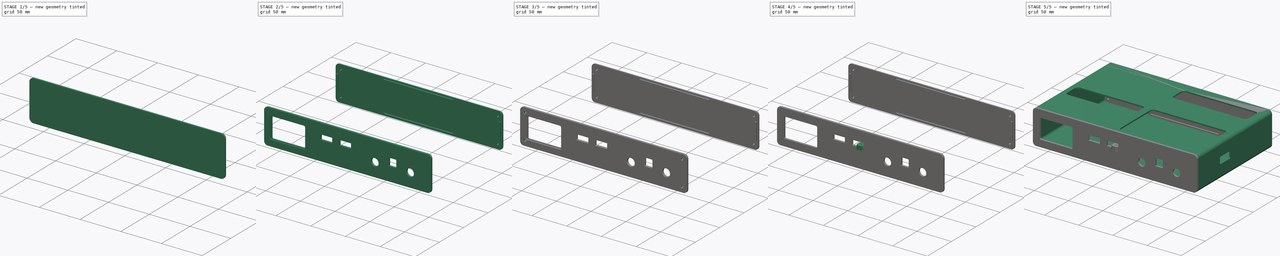
[diagram: build sequence overview — one tinted view per stage of 5, left to right]
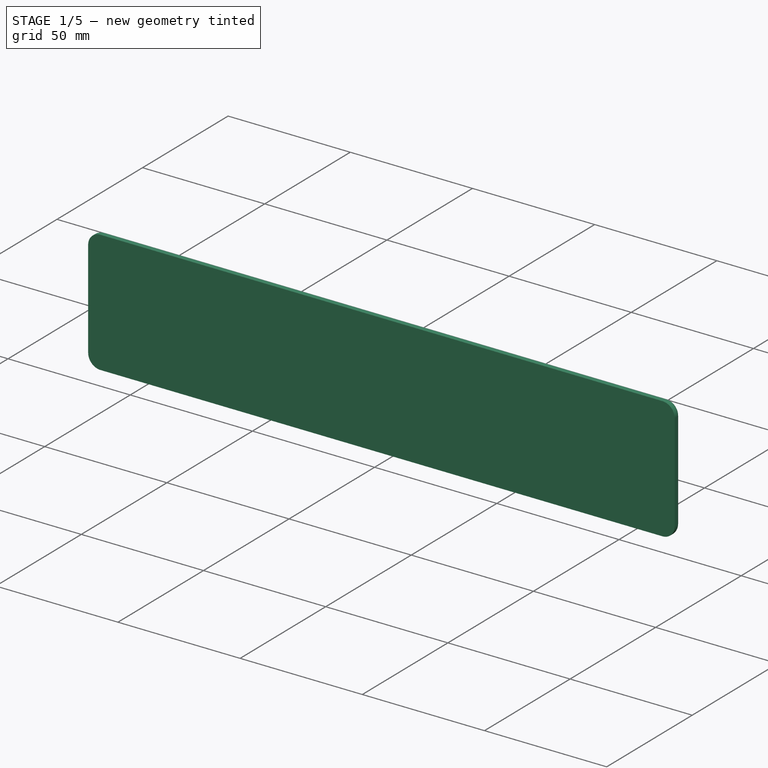
[diagram: stage 1 of 5 — iso view after this stage's code; geometry added in this stage tinted green]
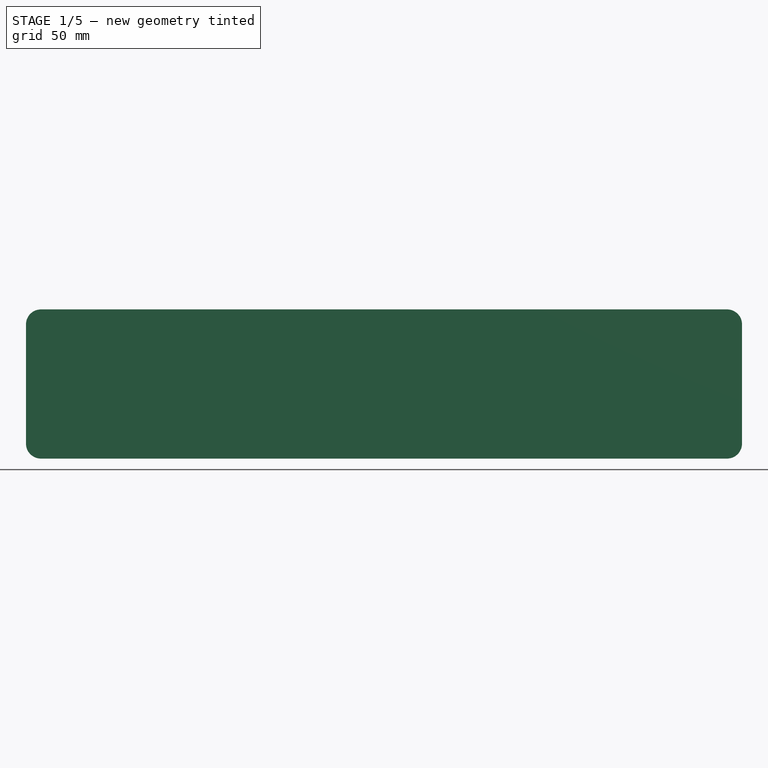
[diagram: stage 1 of 5 — front view after this stage's code; geometry added in this stage tinted green]
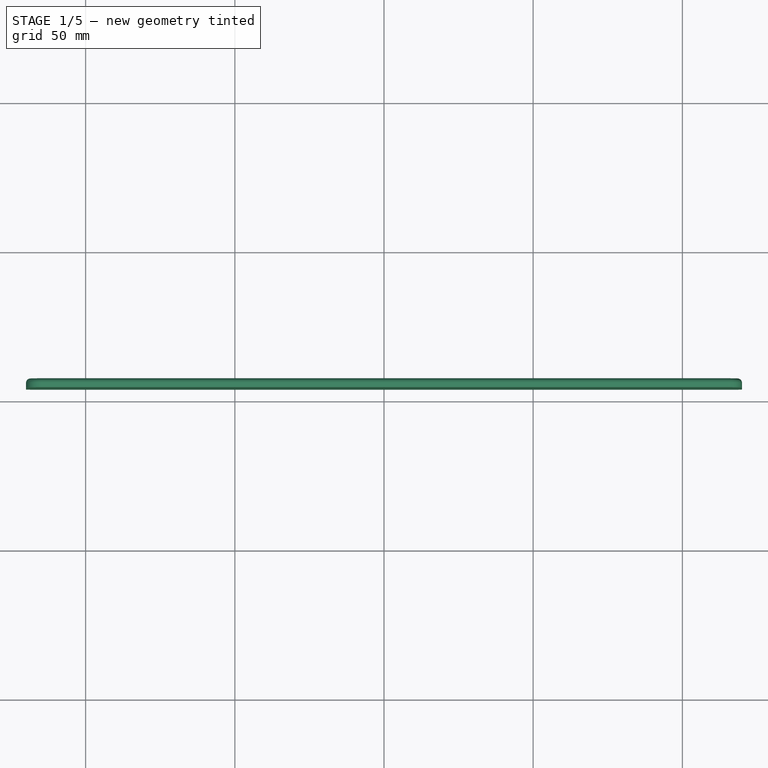
[diagram: stage 1 of 5 — top view after this stage's code; geometry added in this stage tinted green]
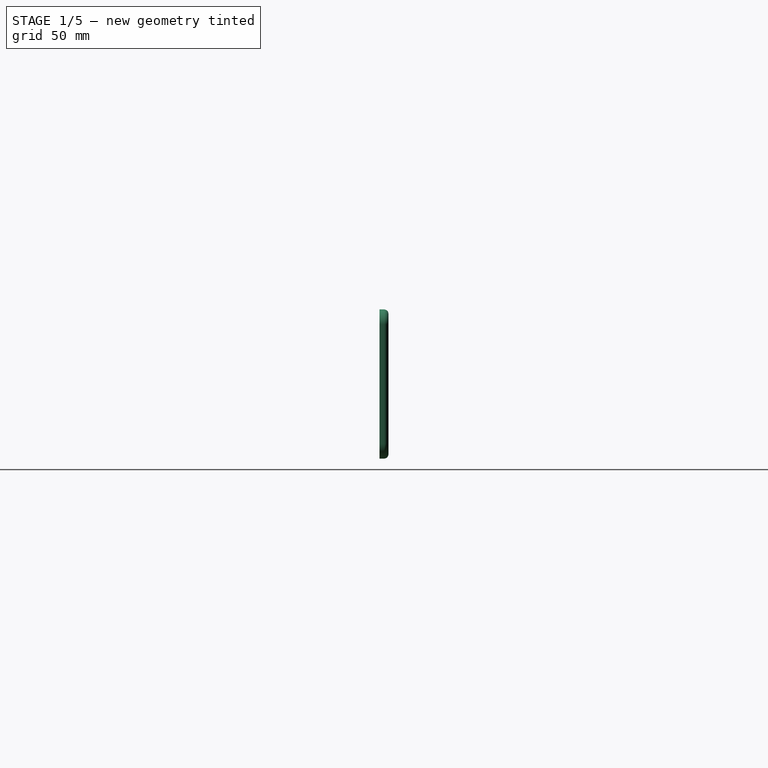
[diagram: stage 1 of 5 — right view after this stage's code; geometry added in this stage tinted green]
FCSTD DOCUMENT  (FreeCAD 1.1R14555 (Git shallow))
Label: housing v0.1
License: All rights reserved
LicenseURL: http://en.wikipedia.org/wiki/All_rights_reserved
objects: Sketcher::SketchObject×12, PartDesign::Pad×6, PartDesign::Pocket×5, App::Point×4, PartDesign::Body×4, PartDesign::Fillet×3, Spreadsheet::Sheet×1, PartDesign::Hole×1
note: 73 computed .brp shape members not serialized (recipe doc carries the construction recipe); baked Part::Feature solids carry a one-line shape summary decoded from their .brp

FEATURE [Spreadsheet::Sheet] Spreadsheet  label="dimensions"
  cells = A1='ext_width; B1(ext_width)=240; A2='ext_height; B2(ext_height)=50; A3='ext_depth; B3(ext_depth)=160; A4='wall_thickness; B4(wall_wthickness)=2; A5='panel_thickness; B5(panel_thickness)=3; A6='ext_radius; B6(ext_radius)=5
FEATURE [Sketcher::SketchObject] Sketch
  ArcFitTolerance = 1e-06
  AttachmentOffset = pos=(0,0,-154) rot=(0,0,1;0rad)
  AttachmentSupport = -> [XZ_Plane]
  ExternalTypes = [0]
  FullyConstrained = true
  MakeInternals = false
  MapMode = 5
  Placement = pos=(0,154,-3.42e-14) rot=(1,0,0;1.5708rad)
  expr: .AttachmentOffset.Base.z = -<<dimensions>>.ext_depth + <<dimensions>>.panel_thickness * 2
  expr: Constraints[17] = <<dimensions>>.ext_radius
  expr: Constraints[18] = <<dimensions>>.ext_width
  expr: Constraints[20] = <<dimensions>>.ext_height
  sketch-geometry (10):
    g0: LineSegment StartX=-120 StartY=20 StartZ=0 EndX=-120 EndY=-20 EndZ=0
    g1: LineSegment StartX=-115 StartY=-25 StartZ=0 EndX=115 EndY=-25 EndZ=0
    g2: LineSegment StartX=120 StartY=-20 StartZ=0 EndX=120 EndY=20 EndZ=0
    g3: LineSegment StartX=115 StartY=25 StartZ=0 EndX=-115 EndY=25 EndZ=0
    g4: ArcOfCircle CenterX=-115 CenterY=20 CenterZ=0 NormalX=0 NormalY=0 NormalZ=1 AngleXU=0 Radius=5 StartAngle=1.5708 EndAngle=3.14159
    g5: ArcOfCircle CenterX=-115 CenterY=-20 CenterZ=0 NormalX=0 NormalY=0 NormalZ=1 AngleXU=0 Radius=5 StartAngle=3.14159 EndAngle=4.71239
    g6: ArcOfCircle CenterX=115 CenterY=-20 CenterZ=0 NormalX=0 NormalY=0 NormalZ=1 AngleXU=0 Radius=5 StartAngle=4.71239 EndAngle=6.28319
    g7: ArcOfCircle CenterX=115 CenterY=20 CenterZ=0 NormalX=0 NormalY=0 NormalZ=1 AngleXU=0 Radius=5 StartAngle=0 EndAngle=1.5708
    g8: GeomPoint [constr] X=-120 Y=25 Z=0
    g9: GeomPoint [constr] X=120 Y=-25 Z=0
  constraints (22):
    c: Tangent(g0,g4) = -1.5708
    c: Tangent(g0,g5) = -1.5708
    c: Tangent(g1,g5) = -1.5708
    c: Tangent(g1,g6) = -1.5708
    c: Tangent(g2,g6) = -1.5708
    c: Tangent(g2,g7) = -1.5708
    c: Tangent(g3,g7) = -1.5708
    c: Tangent(g3,g4) = -1.5708
    c: Vertical(g0)
    c: Vertical(g2)
    c: Horizontal(g1)
    c: Horizontal(g3)
    c: Equal(g6,g7)
    c: PointOnObject(g8,g0)
    c: PointOnObject(g8,g3)
    c: PointOnObject(g9,g1)
    c: PointOnObject(g9,g2)
    c: Radius(g5) = 5
    c: Distance(g0,g2) = 240
    c: Symmetric(g0,g2,g-2)
    c: Distance(g1,g3) = 50
    c: Symmetric(g3,g1,g-1)
FEATURE [App::Point] Origin001
  Role = Origin
FEATURE [PartDesign::Pad] Pad
  Direction = (0,-1,2e-16)
  Length = 3
  Length2 = 10
  Placement = pos=(0,0,0) rot=(1,0,0;1.5708rad)
  Profile = -> Sketch
  ReferenceAxis = -> Sketch [N_Axis]
  Reversed = true
  SideType = 0
  Suppressed = false
  Type = 0
  Type2 = 0
  expr: Length = <<dimensions>>.panel_thickness
FEATURE [PartDesign::Body] Body001  label="shell"
  AllowCompound = false
  Group = -> [Sketch001,Pad001,Sketch003,Pocket,Sketch004,Pocket001]
  Origin = -> Origin002
  Tip = -> Pocket001
FEATURE [Sketcher::SketchObject] Sketch005
  ArcFitTolerance = 1e-06
  AttachmentOffset = pos=(0,-25,0) rot=(0,0,1;0rad)
  AttachmentSupport = -> [Pad002]
  ExternalTypes = [0]
  FullyConstrained = true
  MakeInternals = false
  MapMode = 5
  Placement = pos=(0,-3,-25) rot=(1,0,0;1.5708rad)
  expr: .AttachmentOffset.Base.y = -<<dimensions>>.ext_height / 2
  sketch-geometry (10):
    g0: LineSegment StartX=-111.5 StartY=38 StartZ=0 EndX=-111.5 EndY=11 EndZ=0
    g1: LineSegment StartX=-109.5 StartY=9 StartZ=0 EndX=-62.5 EndY=9 EndZ=0
    g2: LineSegment StartX=-60.5 StartY=11 StartZ=0 EndX=-60.5 EndY=38 EndZ=0
    g3: LineSegment StartX=-62.5 StartY=40 StartZ=0 EndX=-109.5 EndY=40 EndZ=0
    g4: ArcOfCircle CenterX=-109.5 CenterY=38 CenterZ=0 NormalX=0 NormalY=0 NormalZ=1 AngleXU=0 Radius=2 StartAngle=1.5708 EndAngle=3.14159
    g5: ArcOfCircle CenterX=-109.5 CenterY=11 CenterZ=0 NormalX=0 NormalY=0 NormalZ=1 AngleXU=0 Radius=2 StartAngle=3.14159 EndAngle=4.71239
    g6: ArcOfCircle CenterX=-62.5 CenterY=11 CenterZ=0 NormalX=0 NormalY=0 NormalZ=1 AngleXU=0 Radius=2 StartAngle=4.71239 EndAngle=6.28319
    g7: ArcOfCircle CenterX=-62.5 CenterY=38 CenterZ=0 NormalX=0 NormalY=0 NormalZ=1 AngleXU=0 Radius=2 StartAngle=-9e-16 EndAngle=1.5708
    g8: GeomPoint [constr] X=-111.5 Y=40 Z=0
    g9: GeomPoint [constr] X=-60.5 Y=9 Z=0
  constraints (24):
    c: Tangent(g0,g4) = -1.5708
    c: Tangent(g0,g5) = -1.5708
    c: Tangent(g1,g5) = -1.5708
    c: Tangent(g1,g6) = -1.5708
    c: Tangent(g2,g6) = -1.5708
    c: Tangent(g2,g7) = -1.5708
    c: Tangent(g3,g7) = -1.5708
    c: Tangent(g3,g4) = -1.5708
    c: Vertical(g0)
    c: Vertical(g2)
    c: Horizontal(g1)
    c: Horizontal(g3)
    c: Equal(g4,g5)
    c: Equal(g5,g6)
    c: Equal(g6,g7)
    c: PointOnObject(g8,g0)
    c: PointOnObject(g8,g3)
    c: PointOnObject(g9,g1)
    c: PointOnObject(g9,g2)
    c: Radius(g5) = 2
    c: Distance(g2,g0) = 51
    c: Distance(g1,g3) = 31
    c: Distance(g-2,g2) = 60.5
    c: Distance(g-1,g1) = 9
FEATURE [PartDesign::Fillet] Fillet002
  Base = -> Pad [Edge22]
  BaseFeature = -> Pad
  Placement = pos=(0,0,0) rot=(1,0,0;1.5708rad)
  Radius = 1.5
  SupportTransform = false
  Suppressed = false
  UseAllEdges = false
FEATURE [PartDesign::Body] Body002  label="rear panel"
  AllowCompound = false
  Group = -> [Sketch002,Pad002,Sketch005,Pocket002,Sketch009,Pad005,Sketch010,Pocket003,Fillet,Fillet003]
  Origin = -> Origin004
  Tip = -> Fillet003
FEATURE [PartDesign::Body] Body  label="front panel"
  AllowCompound = false
  Group = -> [Sketch,Pad,Fillet002,Sketch011,Pocket004,Sketch012,Pad006]
  Origin = -> Origin
  Tip = -> Pad006
FEATURE [Sketcher::SketchObject] Sketch011
  ArcFitTolerance = 1e-06
  AttachmentSupport = -> [Fillet002,Body]
  ExternalTypes = [0]
  FullyConstrained = true
  MakeInternals = false
  MapMode = 45
  Placement = pos=(1.448e-13,150.394,-3.33e-14) rot=(0.57735,0.57735,0.57735;4.18879rad)
  sketch-geometry (4):
    g0: Circle CenterX=-113 CenterY=18 CenterZ=0 NormalX=0 NormalY=0 NormalZ=1 AngleXU=0 Radius=1.5
    g1: Circle CenterX=113 CenterY=18 CenterZ=0 NormalX=0 NormalY=0 NormalZ=1 AngleXU=0 Radius=1.5
    g2: Circle CenterX=113 CenterY=-18 CenterZ=0 NormalX=0 NormalY=0 NormalZ=1 AngleXU=0 Radius=1.5
    g3: Circle CenterX=-113 CenterY=-18 CenterZ=0 NormalX=0 NormalY=0 NormalZ=1 AngleXU=0 Radius=1.5
  constraints (9):
    c: Equal(g0,g1)
    c: Equal(g0,g2)
    c: Equal(g0,g3)
    c: Diameter(g0) = 3
    c: DistanceX(g-1,g1) = 113
    c: DistanceY(g-1,g1) = 18
    c: Symmetric(g1,g2,g-1)
    c: Symmetric(g1,g0,g-2)
    c: Symmetric(g0,g3,g-1)
FEATURE [PartDesign::Pocket] Pocket004
  BaseFeature = -> Fillet002
  Direction = (0,-1,-2e-16)
  Length = 5
  Length2 = 5
  Placement = pos=(0,0,0) rot=(1,0,0;1.5708rad)
  Profile = -> Sketch011
  ReferenceAxis = -> Sketch011 [N_Axis]
  SideType = 0
  Suppressed = false
  Type = 0
  Type2 = 0
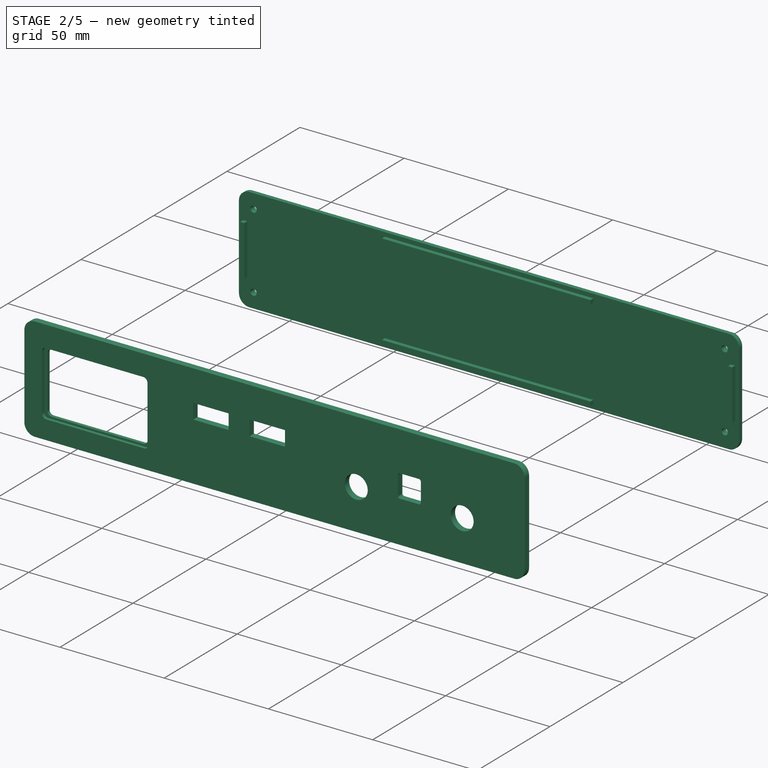
[diagram: stage 2 of 5 — iso view after this stage's code; geometry added in this stage tinted green]
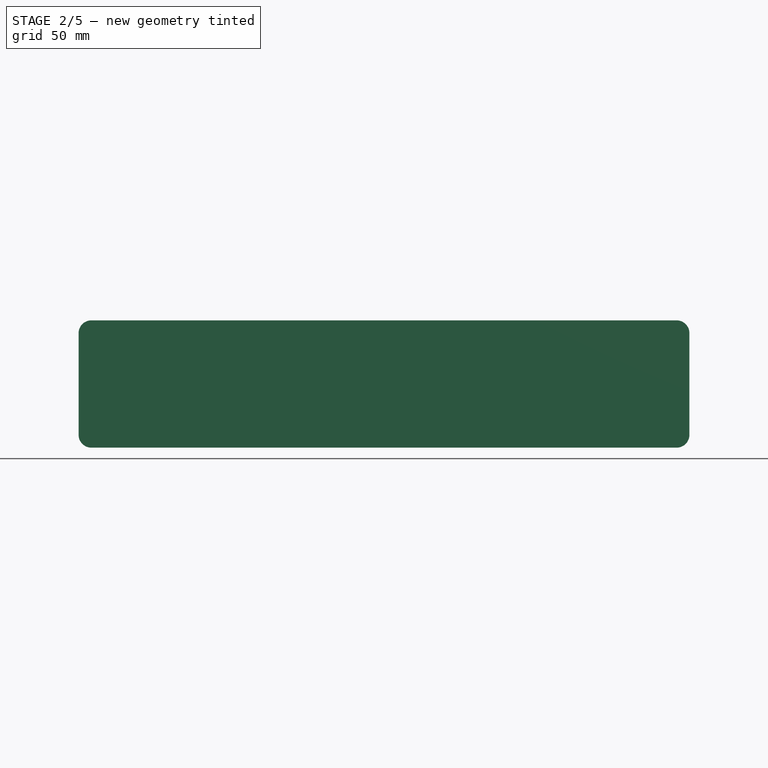
[diagram: stage 2 of 5 — front view after this stage's code; geometry added in this stage tinted green]
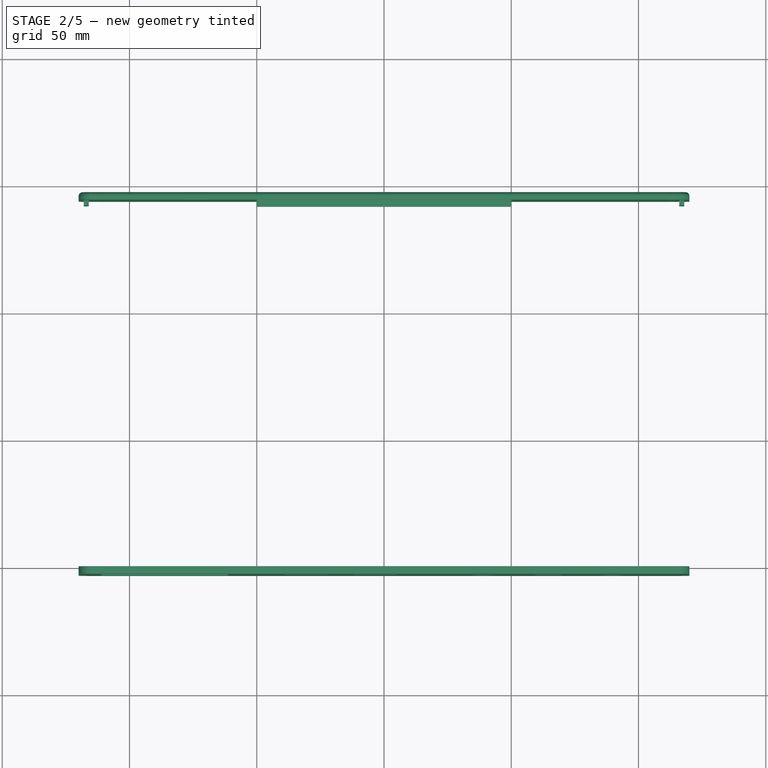
[diagram: stage 2 of 5 — top view after this stage's code; geometry added in this stage tinted green]
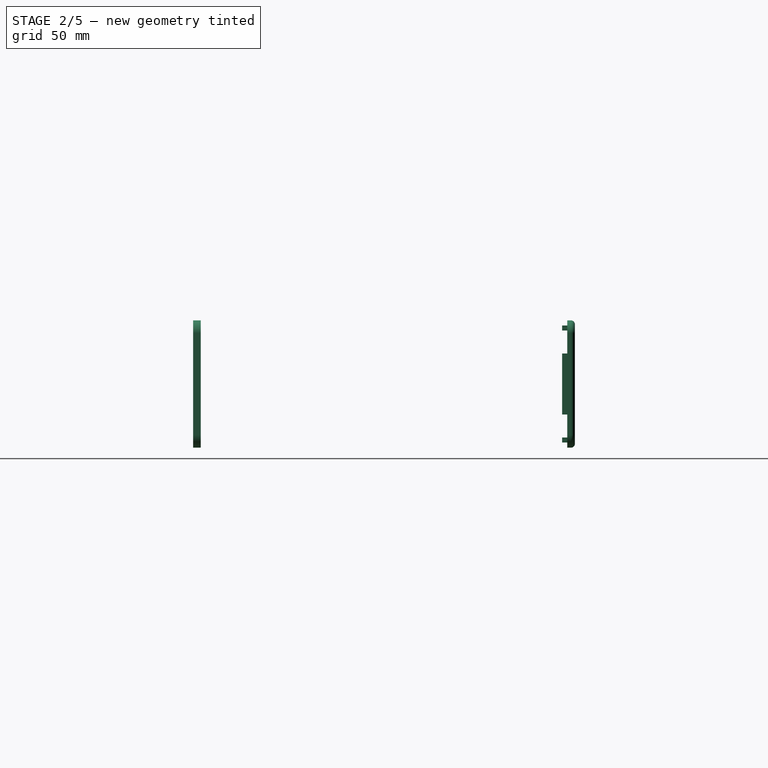
[diagram: stage 2 of 5 — right view after this stage's code; geometry added in this stage tinted green]
FEATURE [App::Point] Origin005
  Role = Origin
FEATURE [Sketcher::SketchObject] Sketch002
  ArcFitTolerance = 1e-06
  AttachmentOffset = pos=(0,-25,0) rot=(1,0,0;0rad)
  AttachmentSupport = -> [Origin004]
  ExternalTypes = [0]
  FullyConstrained = true
  MakeInternals = false
  MapMode = 5
  Placement = pos=(0,-5.6e-15,-25) rot=(1,0,0;1.5708rad)
  expr: .AttachmentOffset.Base.y = -<<dimensions>>.ext_height / 2
  expr: Constraints[21] = <<dimensions>>.ext_width
  expr: Constraints[25] = <<dimensions>>.wall_wthickness + 10 + 7.5
  sketch-geometry (40):
    g0: LineSegment StartX=-120 StartY=45 StartZ=0 EndX=-120 EndY=5 EndZ=0
    g1: LineSegment StartX=-115 StartY=0 StartZ=0 EndX=115 EndY=0 EndZ=0
    g2: LineSegment StartX=120 StartY=5 StartZ=0 EndX=120 EndY=45 EndZ=0
    g3: LineSegment StartX=115 StartY=50 StartZ=0 EndX=-115 EndY=50 EndZ=0
    g4: ArcOfCircle CenterX=-115 CenterY=45 CenterZ=0 NormalX=0 NormalY=0 NormalZ=1 AngleXU=0 Radius=5 StartAngle=1.5708 EndAngle=3.14159
    g5: ArcOfCircle CenterX=-115 CenterY=5 CenterZ=0 NormalX=0 NormalY=0 NormalZ=1 AngleXU=0 Radius=5 StartAngle=3.14159 EndAngle=4.71239
    g6: ArcOfCircle CenterX=115 CenterY=5 CenterZ=0 NormalX=0 NormalY=0 NormalZ=1 AngleXU=0 Radius=5 StartAngle=4.71239 EndAngle=6.28319
    g7: ArcOfCircle CenterX=115 CenterY=45 CenterZ=0 NormalX=0 NormalY=0 NormalZ=1 AngleXU=0 Radius=5 StartAngle=6e-16 EndAngle=1.5708
    g8: GeomPoint [constr] X=-120 Y=50 Z=0
    g9: GeomPoint [constr] X=120 Y=0 Z=0
    g10: Circle CenterX=90 CenterY=19.5 CenterZ=0 NormalX=0 NormalY=0 NormalZ=1 AngleXU=0 Radius=5.5
    g11: Circle CenterX=39.2 CenterY=19.5 CenterZ=0 NormalX=0 NormalY=0 NormalZ=1 AngleXU=0 Radius=5.5
    g12: LineSegment StartX=59.2 StartY=30 StartZ=0 EndX=59.2 EndY=21 EndZ=0
    g13: LineSegment StartX=60.2 StartY=20 StartZ=0 EndX=69.2 EndY=20 EndZ=0
    g14: LineSegment StartX=70.2 StartY=21 StartZ=0 EndX=70.2 EndY=30 EndZ=0
    g15: LineSegment StartX=69.2 StartY=31 StartZ=0 EndX=60.2 EndY=31 EndZ=0
    g16: ArcOfCircle CenterX=60.2 CenterY=30 CenterZ=0 NormalX=0 NormalY=0 NormalZ=1 AngleXU=0 Radius=1 StartAngle=1.5708 EndAngle=3.14159
    g17: ArcOfCircle CenterX=60.2 CenterY=21 CenterZ=0 NormalX=0 NormalY=0 NormalZ=1 AngleXU=0 Radius=1 StartAngle=3.14159 EndAngle=4.71239
    g18: ArcOfCircle CenterX=69.2 CenterY=21 CenterZ=0 NormalX=0 NormalY=0 NormalZ=1 AngleXU=0 Radius=1 StartAngle=4.71239 EndAngle=6.28319
    g19: ArcOfCircle CenterX=69.2 CenterY=30 CenterZ=0 NormalX=0 NormalY=0 NormalZ=1 AngleXU=0 Radius=1 StartAngle=-9e-16 EndAngle=1.5708
    g20: GeomPoint [constr] X=59.2 Y=31 Z=0
    g21: GeomPoint [constr] X=70.2 Y=20 Z=0
    g22: LineSegment StartX=-39 StartY=35 StartZ=0 EndX=-39 EndY=27.8 EndZ=0
    g23: LineSegment StartX=-39 StartY=27.8 StartZ=0 EndX=-22 EndY=27.8 EndZ=0
    g24: LineSegment StartX=-22 StartY=27.8 StartZ=0 EndX=-22 EndY=35 EndZ=0
    g25: LineSegment StartX=-22 StartY=35 StartZ=0 EndX=-39 EndY=35 EndZ=0
    g26: LineSegment StartX=-12 StartY=35 StartZ=0 EndX=-12 EndY=27.8 EndZ=0
    g27: LineSegment StartX=-12 StartY=27.8 StartZ=0 EndX=5 EndY=27.8 EndZ=0
    g28: LineSegment StartX=5 StartY=27.8 StartZ=0 EndX=5 EndY=35 EndZ=0
    g29: LineSegment StartX=5 StartY=35 StartZ=0 EndX=-12 EndY=35 EndZ=0
    g30: LineSegment StartX=-110 StartY=37 StartZ=0 EndX=-110 EndY=12 EndZ=0
    g31: LineSegment StartX=-108 StartY=10 StartZ=0 EndX=-64 EndY=10 EndZ=0
    g32: LineSegment StartX=-62 StartY=12 StartZ=0 EndX=-62 EndY=37 EndZ=0
    g33: LineSegment StartX=-64 StartY=39 StartZ=0 EndX=-108 EndY=39 EndZ=0
    g34: ArcOfCircle CenterX=-108 CenterY=37 CenterZ=0 NormalX=0 NormalY=0 NormalZ=1 AngleXU=0 Radius=2 StartAngle=1.5708 EndAngle=3.14159
    g35: ArcOfCircle CenterX=-108 CenterY=12 CenterZ=0 NormalX=0 NormalY=0 NormalZ=1 AngleXU=0 Radius=2 StartAngle=3.14159 EndAngle=4.71239
    g36: ArcOfCircle CenterX=-64 CenterY=12 CenterZ=0 NormalX=0 NormalY=0 NormalZ=1 AngleXU=0 Radius=2 StartAngle=4.71239 EndAngle=6.28319
    g37: ArcOfCircle CenterX=-64 CenterY=37 CenterZ=0 NormalX=0 NormalY=0 NormalZ=1 AngleXU=0 Radius=2 StartAngle=-9e-16 EndAngle=1.5708
    g38: GeomPoint [constr] X=-110 Y=39 Z=0
    g39: GeomPoint [constr] X=-62 Y=10 Z=0
  constraints (101):
    c: Tangent(g0,g4) = -1.5708
    c: Tangent(g0,g5) = -1.5708
    c: Tangent(g1,g5) = -1.5708
    c: Tangent(g1,g6) = -1.5708
    c: Tangent(g2,g6) = -1.5708
    c: Tangent(g2,g7) = -1.5708
    c: Tangent(g3,g7) = -1.5708
    c: Tangent(g3,g4) = -1.5708
    c: Vertical(g0)
    c: Vertical(g2)
    c: Horizontal(g1)
    c: Horizontal(g3)
    c: Equal(g4,g5)
    c: Equal(g6,g7)
    c: PointOnObject(g8,g0)
    c: PointOnObject(g8,g3)
    c: PointOnObject(g9,g1)
    c: PointOnObject(g9,g2)
    c: Radius(g5) = 5
    c: PointOnObject(g1,g-1)
    c: DistanceY(g-1,g3) = 50
    c: Distance(g0,g2) = 240
    c: Symmetric(g0,g2,g-2)
    c: Diameter(g10) = 11
    c: Distance(g10,g2) = 30
    c: Distance(g10,g-1) = 19.5
    c: Diameter(g11) = 11
    c: Distance(g11,g1) = 19.5
    c: DistanceX(g11,g10) = 50.8
    c: Tangent(g12,g16) = -1.5708
    c: Tangent(g12,g17) = -1.5708
    c: Tangent(g13,g17) = -1.5708
    c: Tangent(g13,g18) = -1.5708
    c: Tangent(g14,g18) = -1.5708
    c: Tangent(g14,g19) = -1.5708
    c: Tangent(g15,g19) = -1.5708
    c: Tangent(g15,g16) = -1.5708
    c: Vertical(g12)
    c: Vertical(g14)
    c: Horizontal(g13)
    c: Horizontal(g15)
    c: Equal(g16,g17)
    c: Equal(g17,g18)
    c: Equal(g18,g19)
    c: PointOnObject(g20,g12)
    c: PointOnObject(g20,g15)
    c: PointOnObject(g21,g13)
    c: PointOnObject(g21,g14)
    c: Radius(g17) = 1
    c: Distance(g14,g12) = 11
    c: Distance(g13,g15) = 11
    c: Distance(g1,g13) = 20
    c: Distance(g11,g12) = 20
    c: Coincident(g22,g23)
    c: Coincident(g23,g24)
    c: Coincident(g24,g25)
    c: Coincident(g25,g22)
    c: Vertical(g22)
    c: Vertical(g24)
    c: Horizontal(g23)
    c: Horizontal(g25)
    c: Coincident(g26,g27)
    c: Coincident(g27,g28)
    c: Coincident(g28,g29)
    c: Coincident(g29,g26)
    c: Vertical(g26)
    c: Vertical(g28)
    c: Horizontal(g27)
    c: Horizontal(g29)
    c: DistanceX(g25,g25) = 17
    c: DistanceY(g24,g24) = 7.2
    c: DistanceY(g28,g28) = 7.2
    c: DistanceX(g27,g27) = 17
    c: Distance(g26,g24) = 10
    c: Distance(g3,g25) = 15
    c: Distance(g3,g29) = 15
    c: Tangent(g30,g34) = -1.5708
    c: Tangent(g30,g35) = -1.5708
    c: Tangent(g31,g35) = -1.5708
    c: Tangent(g31,g36) = -1.5708
    c: Tangent(g32,g36) = -1.5708
    c: Tangent(g32,g37) = -1.5708
    c: Tangent(g33,g37) = -1.5708
    c: Tangent(g33,g34) = -1.5708
    c: Vertical(g30)
    c: Vertical(g32)
    c: Horizontal(g31)
    c: Horizontal(g33)
    c: Equal(g34,g35)
    c: Equal(g35,g36)
    c: Equal(g36,g37)
    c: PointOnObject(g38,g30)
    c: PointOnObject(g38,g33)
    c: PointOnObject(g39,g31)
    c: PointOnObject(g39,g32)
    c: Radius(g35) = 2
    c: Distance(g32,g30) = 48
    c: Distance(g31,g33) = 29
    c: Distance(g0,g30) = 10
    c: Distance(g1,g31) = 10
    c: Distance(g-2,g28) = 5
FEATURE [PartDesign::Pad] Pad002
  Direction = (0,-1,2e-16)
  Length = 3
  Length2 = 10
  Profile = -> Sketch002
  ReferenceAxis = -> Sketch002 [N_Axis]
  SideType = 0
  Suppressed = false
  Type = 0
  Type2 = 0
FEATURE [PartDesign::Body] Body003  label="m3 lug"
  AllowCompound = false
  Group = -> [Sketch006,Pad003,Sketch007,Hole]
  Origin = -> Origin006
  Tip = -> Hole
FEATURE [PartDesign::Pocket] Pocket002
  BaseFeature = -> Pad002
  Direction = (0,1,-2e-16)
  Length = 1.5
  Length2 = 5
  Profile = -> Sketch005
  ReferenceAxis = -> Sketch005 [N_Axis]
  SideType = 0
  Suppressed = false
  Type = 0
  Type2 = 0
FEATURE [Sketcher::SketchObject] Sketch012
  ArcFitTolerance = 1e-06
  AttachmentSupport = -> [Pocket004]
  ExternalTypes = [0]
  FullyConstrained = true
  MakeInternals = false
  MapMode = 5
  Placement = pos=(0,154,0) rot=(1,0,0;1.5708rad)
  sketch-geometry (16):
    g0: LineSegment StartX=-50 StartY=23 StartZ=0 EndX=-50 EndY=21 EndZ=0
    g1: LineSegment StartX=-50 StartY=21 StartZ=0 EndX=50 EndY=21 EndZ=0
    g2: LineSegment StartX=50 StartY=21 StartZ=0 EndX=50 EndY=23 EndZ=0
    g3: LineSegment StartX=50 StartY=23 StartZ=0 EndX=-50 EndY=23 EndZ=0
    g4: LineSegment StartX=-50 StartY=-21 StartZ=0 EndX=-50 EndY=-23 EndZ=0
    g5: LineSegment StartX=-50 StartY=-23 StartZ=0 EndX=50 EndY=-23 EndZ=0
    g6: LineSegment StartX=50 StartY=-23 StartZ=0 EndX=50 EndY=-21 EndZ=0
    g7: LineSegment StartX=50 StartY=-21 StartZ=0 EndX=-50 EndY=-21 EndZ=0
    g8: LineSegment StartX=116 StartY=12 StartZ=0 EndX=116 EndY=-12 EndZ=0
    g9: LineSegment StartX=116 StartY=-12 StartZ=0 EndX=118 EndY=-12 EndZ=0
    g10: LineSegment StartX=118 StartY=-12 StartZ=0 EndX=118 EndY=12 EndZ=0
    g11: LineSegment StartX=118 StartY=12 StartZ=0 EndX=116 EndY=12 EndZ=0
    g12: LineSegment StartX=-118 StartY=12 StartZ=0 EndX=-118 EndY=-12 EndZ=0
    g13: LineSegment StartX=-118 StartY=-12 StartZ=0 EndX=-116 EndY=-12 EndZ=0
    g14: LineSegment StartX=-116 StartY=-12 StartZ=0 EndX=-116 EndY=12 EndZ=0
    g15: LineSegment StartX=-116 StartY=12 StartZ=0 EndX=-118 EndY=12 EndZ=0
  constraints (42):
    c: Coincident(g0,g1)
    c: Coincident(g1,g2)
    c: Coincident(g2,g3)
    c: Coincident(g3,g0)
    c: Vertical(g0)
    c: Vertical(g2)
    c: Horizontal(g3)
    c: Coincident(g4,g5)
    c: Coincident(g5,g6)
    c: Coincident(g6,g7)
    c: Coincident(g7,g4)
    c: Vertical(g4)
    c: Vertical(g6)
    c: Horizontal(g5)
    c: Coincident(g8,g9)
    c: Coincident(g9,g10)
    c: Coincident(g10,g11)
    c: Coincident(g11,g8)
    c: Vertical(g10)
    c: Horizontal(g9)
    c: Horizontal(g11)
    c: Coincident(g12,g13)
    c: Coincident(g13,g14)
    c: Coincident(g14,g15)
    c: Coincident(g15,g12)
    c: Vertical(g14)
    c: Horizontal(g13)
    c: Horizontal(g15)
    c: DistanceX(g3,g3) = 100
    c: DistanceY(g2,g2) = 2
    c: DistanceY(g-1,g0) = 23
    c: Symmetric(g0,g1,g-2)
    c: Symmetric(g4,g6,g-2)
    c: Symmetric(g1,g6,g-1)
    c: DistanceY(g6,g6) = 2
    c: DistanceX(g-1,g9) = 118
    c: DistanceX(g11,g11) = 2
    c: DistanceY(g10,g10) = 24
    c: Symmetric(g8,g8,g-1)
    c: Distance(g15,g15) = 2
    c: Symmetric(g10,g12,g-2)
    c: Symmetric(g12,g9,g-2)
FEATURE [PartDesign::Pad] Pad006
  BaseFeature = -> Pocket004
  Direction = (0,-1,0)
  Length = 2
  Length2 = 10
  Placement = pos=(0,0,0) rot=(1,0,0;1.5708rad)
  Profile = -> Sketch012
  ReferenceAxis = -> Sketch012 [N_Axis]
  SideType = 0
  Suppressed = false
  Type = 0
  Type2 = 0
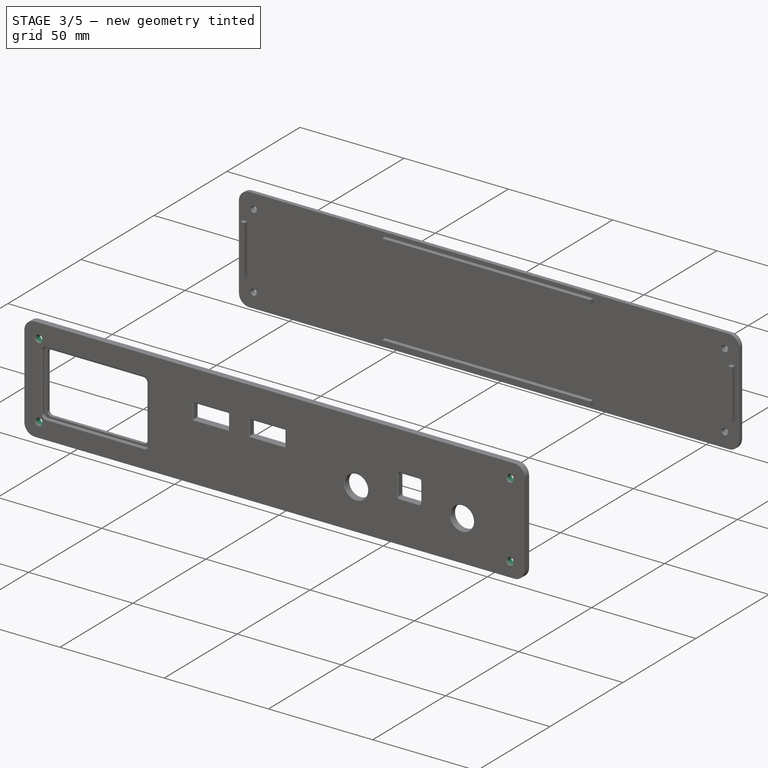
[diagram: stage 3 of 5 — iso view after this stage's code; geometry added in this stage tinted green]
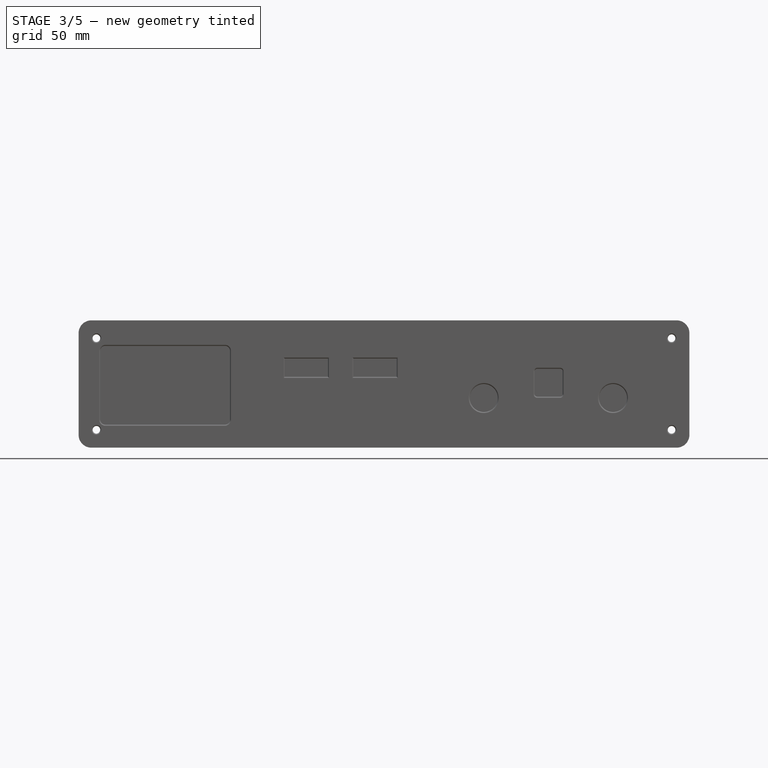
[diagram: stage 3 of 5 — front view after this stage's code; geometry added in this stage tinted green]
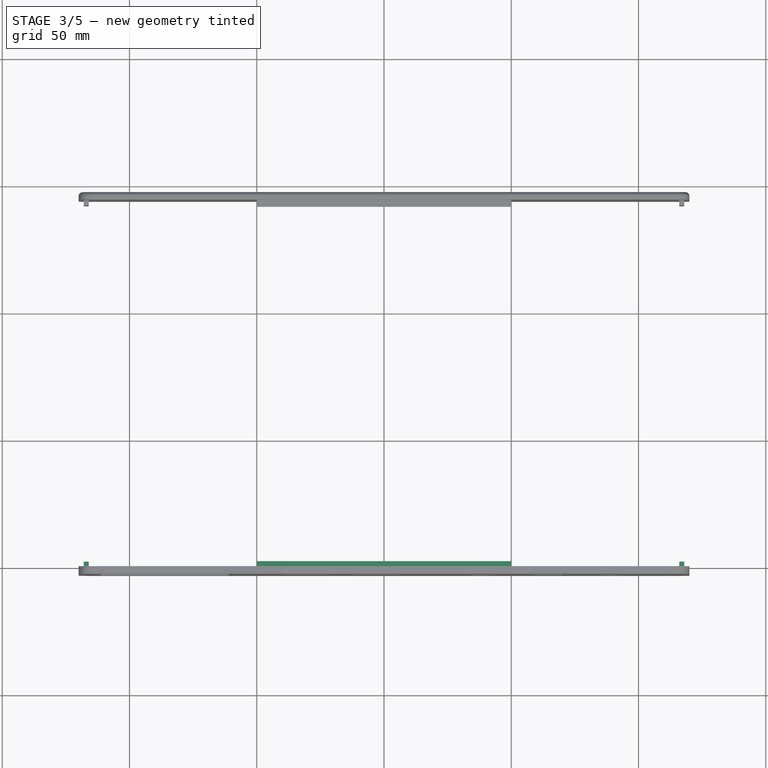
[diagram: stage 3 of 5 — top view after this stage's code; geometry added in this stage tinted green]
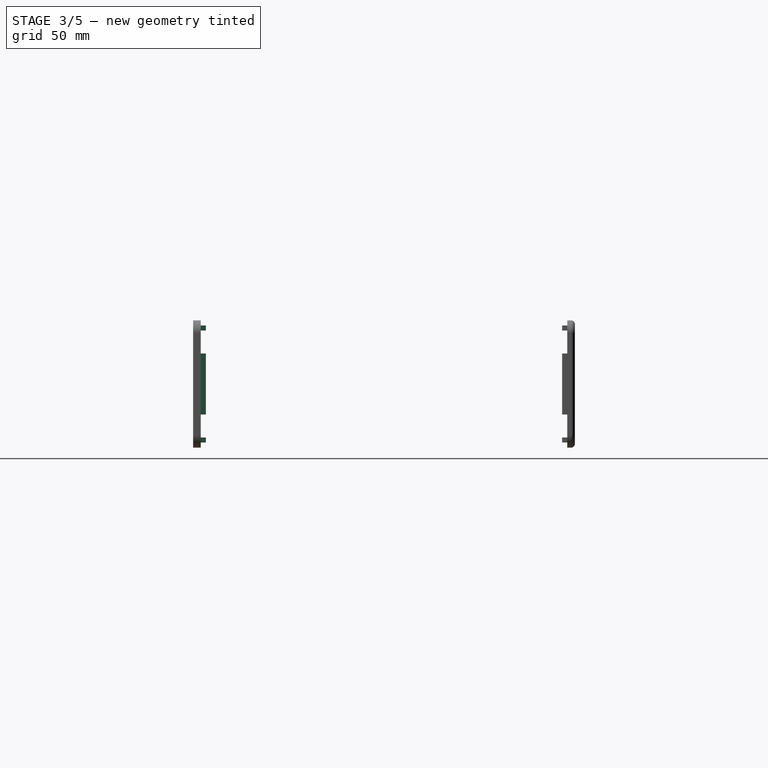
[diagram: stage 3 of 5 — right view after this stage's code; geometry added in this stage tinted green]
FEATURE [Sketcher::SketchObject] Sketch009
  ArcFitTolerance = 1e-06
  AttachmentSupport = -> [Pocket002]
  ExternalTypes = [0]
  FullyConstrained = true
  MakeInternals = false
  MapMode = 5
  Placement = pos=(0,1e-16,0) rot=(0,0.707107,0.707107;3.14159rad)
  expr: Constraints[30] = <<dimensions>>.ext_height / 2 - <<dimensions>>.wall_wthickness
  expr: Constraints[35] = <<dimensions>>.ext_width / 2 - <<dimensions>>.wall_wthickness
  expr: Constraints[37] = <<dimensions>>.ext_height - <<dimensions>>.wall_wthickness * 2 - 20 - 2
  sketch-geometry (16):
    g0: LineSegment StartX=-50 StartY=23 StartZ=0 EndX=-50 EndY=21 EndZ=0
    g1: LineSegment StartX=-50 StartY=21 StartZ=0 EndX=50 EndY=21 EndZ=0
    g2: LineSegment StartX=50 StartY=21 StartZ=0 EndX=50 EndY=23 EndZ=0
    g3: LineSegment StartX=50 StartY=23 StartZ=0 EndX=-50 EndY=23 EndZ=0
    g4: LineSegment StartX=-50 StartY=-21 StartZ=0 EndX=-50 EndY=-23 EndZ=0
    g5: LineSegment StartX=-50 StartY=-23 StartZ=0 EndX=50 EndY=-23 EndZ=0
    g6: LineSegment StartX=50 StartY=-23 StartZ=0 EndX=50 EndY=-21 EndZ=0
    g7: LineSegment StartX=50 StartY=-21 StartZ=0 EndX=-50 EndY=-21 EndZ=0
    g8: LineSegment StartX=116 StartY=12 StartZ=0 EndX=116 EndY=-12 EndZ=0
    g9: LineSegment StartX=116 StartY=-12 StartZ=0 EndX=118 EndY=-12 EndZ=0
    g10: LineSegment StartX=118 StartY=-12 StartZ=0 EndX=118 EndY=12 EndZ=0
    g11: LineSegment StartX=118 StartY=12 StartZ=0 EndX=116 EndY=12 EndZ=0
    g12: LineSegment StartX=-118 StartY=12 StartZ=0 EndX=-118 EndY=-12 EndZ=0
    g13: LineSegment StartX=-118 StartY=-12 StartZ=0 EndX=-116 EndY=-12 EndZ=0
    g14: LineSegment StartX=-116 StartY=-12 StartZ=0 EndX=-116 EndY=12 EndZ=0
    g15: LineSegment StartX=-116 StartY=12 StartZ=0 EndX=-118 EndY=12 EndZ=0
  constraints (42):
    c: Coincident(g0,g1)
    c: Coincident(g1,g2)
    c: Coincident(g2,g3)
    c: Coincident(g3,g0)
    c: Vertical(g0)
    c: Vertical(g2)
    c: Horizontal(g3)
    c: Coincident(g4,g5)
    c: Coincident(g5,g6)
    c: Coincident(g6,g7)
    c: Coincident(g7,g4)
    c: Vertical(g4)
    c: Vertical(g6)
    c: Horizontal(g5)
    c: Coincident(g8,g9)
    c: Coincident(g9,g10)
    c: Coincident(g10,g11)
    c: Coincident(g11,g8)
    c: Vertical(g10)
    c: Horizontal(g9)
    c: Horizontal(g11)
    c: Coincident(g12,g13)
    c: Coincident(g13,g14)
    c: Coincident(g14,g15)
    c: Coincident(g15,g12)
    c: Vertical(g14)
    c: Horizontal(g13)
    c: Horizontal(g15)
    c: DistanceX(g3,g3) = 100
    c: DistanceY(g2,g2) = 2
    c: DistanceY(g-1,g0) = 23
    c: Symmetric(g0,g1,g-2)
    c: Symmetric(g4,g6,g-2)
    c: Symmetric(g1,g6,g-1)
    c: DistanceY(g6,g6) = 2
    c: DistanceX(g-1,g9) = 118
    c: DistanceX(g11,g11) = 2
    c: DistanceY(g10,g10) = 24
    c: Symmetric(g8,g8,g-1)
    c: Distance(g15,g15) = 2
    c: Symmetric(g10,g12,g-2)
    c: Symmetric(g12,g9,g-2)
FEATURE [PartDesign::Pad] Pad005
  BaseFeature = -> Pocket002
  Direction = (0,1,-2e-16)
  Length = 2
  Length2 = 10
  Profile = -> Sketch009
  ReferenceAxis = -> Sketch009 [N_Axis]
  SideType = 0
  Suppressed = false
  Type = 0
  Type2 = 0
FEATURE [Sketcher::SketchObject] Sketch010
  ArcFitTolerance = 1e-06
  ExternalTypes = [0]
  FullyConstrained = true
  MakeInternals = false
  MapMode = 5
  Placement = pos=(0,-3,0) rot=(1,0,0;1.5708rad)
  expr: Constraints[4] = <<dimensions>>.ext_width / 2 - <<dimensions>>.wall_wthickness - 5
  expr: Constraints[5] = <<dimensions>>.ext_height / 2 - <<dimensions>>.wall_wthickness - 5
  sketch-geometry (4):
    g0: Circle CenterX=-113 CenterY=18 CenterZ=0 NormalX=0 NormalY=0 NormalZ=1 AngleXU=0 Radius=1.5
    g1: Circle CenterX=113 CenterY=18 CenterZ=0 NormalX=0 NormalY=0 NormalZ=1 AngleXU=0 Radius=1.5
    g2: Circle CenterX=113 CenterY=-18 CenterZ=0 NormalX=0 NormalY=0 NormalZ=1 AngleXU=0 Radius=1.5
    g3: Circle CenterX=-113 CenterY=-18 CenterZ=0 NormalX=0 NormalY=0 NormalZ=1 AngleXU=0 Radius=1.5
  constraints (9):
    c: Equal(g0,g1)
    c: Equal(g0,g2)
    c: Equal(g0,g3)
    c: Diameter(g0) = 3
    c: DistanceX(g-1,g1) = 113
    c: DistanceY(g-1,g1) = 18
    c: Symmetric(g1,g2,g-1)
    c: Symmetric(g1,g0,g-2)
    c: Symmetric(g0,g3,g-1)
FEATURE [PartDesign::Pocket] Pocket003
  BaseFeature = -> Pad005
  Direction = (0,1,-2e-16)
  Length = 5
  Length2 = 5
  Profile = -> Sketch010
  ReferenceAxis = -> Sketch010 [N_Axis]
  SideType = 0
  Suppressed = false
  Type = 0
  Type2 = 0
FEATURE [PartDesign::Fillet] Fillet003
  Base = -> Pocket003 [Edge69,Edge76,Edge67,Edge79,Edge80,Edge78,Edge77,Edge81,Edge82,Edge84,Edge83,Edge85,Edge88,Edge87,Edge96,Edge86]
  BaseFeature = -> Pocket003
  Radius = 0.5
  SupportTransform = false
  Suppressed = false
  UseAllEdges = false
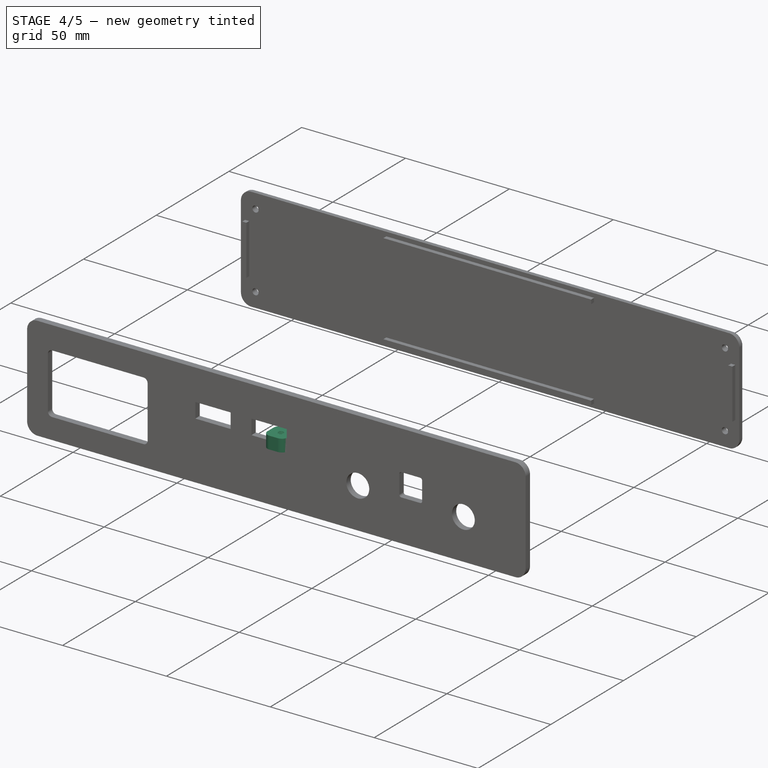
[diagram: stage 4 of 5 — iso view after this stage's code; geometry added in this stage tinted green]
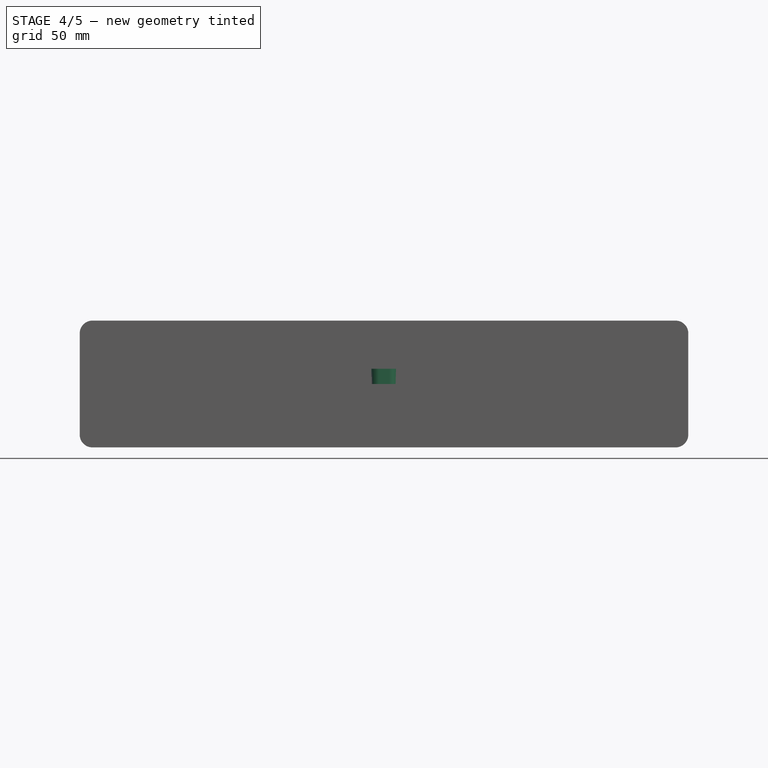
[diagram: stage 4 of 5 — front view after this stage's code; geometry added in this stage tinted green]
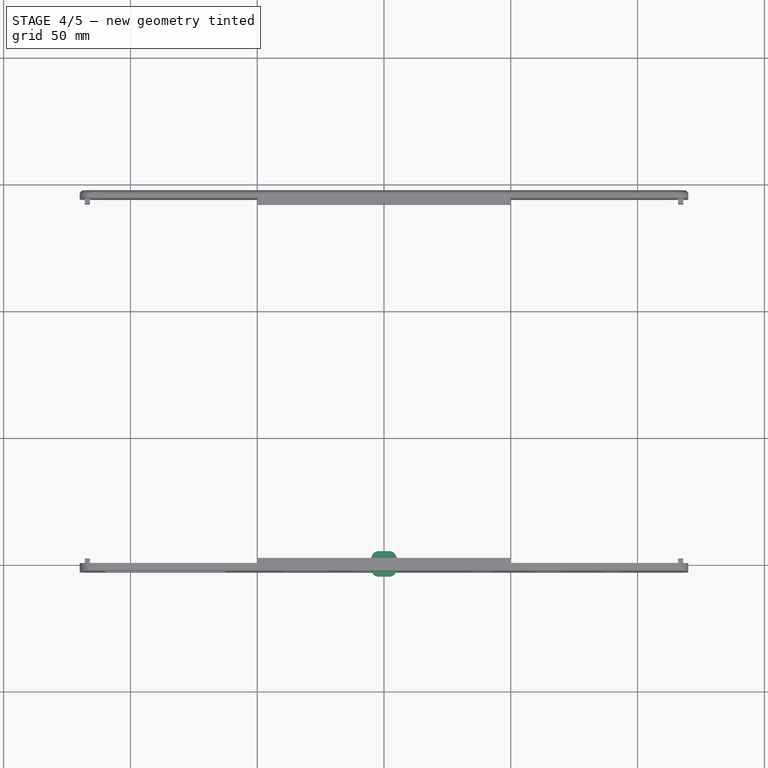
[diagram: stage 4 of 5 — top view after this stage's code; geometry added in this stage tinted green]
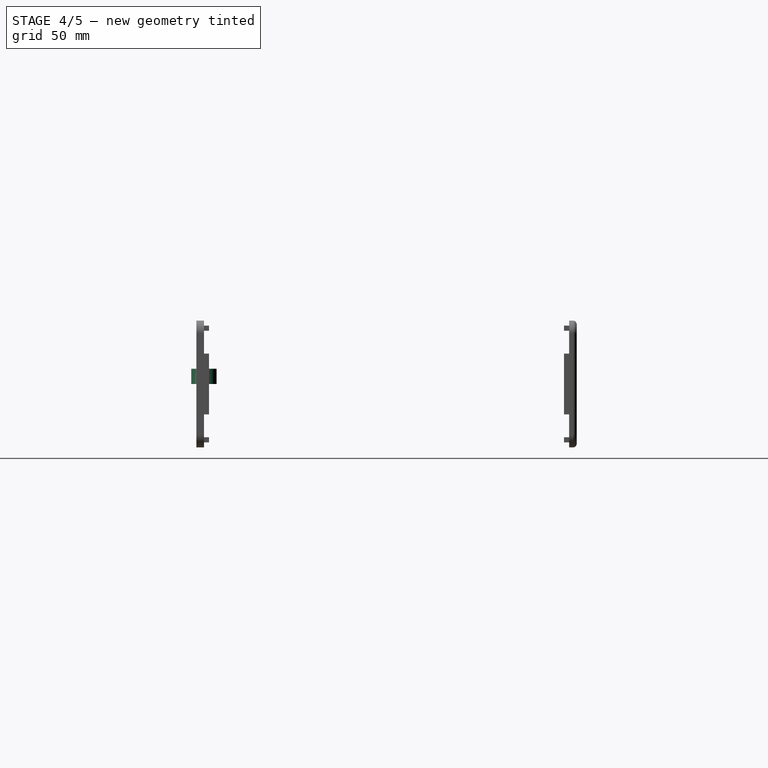
[diagram: stage 4 of 5 — right view after this stage's code; geometry added in this stage tinted green]
FEATURE [App::Point] Origin007
  Role = Origin
FEATURE [Sketcher::SketchObject] Sketch006
  ArcFitTolerance = 1e-06
  AttachmentSupport = -> [Origin006]
  ExternalTypes = [0]
  FullyConstrained = true
  MakeInternals = false
  MapMode = 5
  sketch-geometry (10):
    g0: LineSegment StartX=-5 StartY=2 StartZ=0 EndX=-5 EndY=-2 EndZ=0
    g1: LineSegment StartX=-2 StartY=-5 StartZ=0 EndX=2 EndY=-5 EndZ=0
    g2: LineSegment StartX=5 StartY=-2 StartZ=0 EndX=5 EndY=2 EndZ=0
    g3: LineSegment StartX=2 StartY=5 StartZ=0 EndX=-2 EndY=5 EndZ=0
    g4: ArcOfCircle CenterX=-2 CenterY=2 CenterZ=0 NormalX=0 NormalY=0 NormalZ=1 AngleXU=0 Radius=3 StartAngle=1.5708 EndAngle=3.14159
    g5: ArcOfCircle CenterX=-2 CenterY=-2 CenterZ=0 NormalX=0 NormalY=0 NormalZ=1 AngleXU=0 Radius=3 StartAngle=3.14159 EndAngle=4.71239
    g6: ArcOfCircle CenterX=2 CenterY=-2 CenterZ=0 NormalX=0 NormalY=0 NormalZ=1 AngleXU=0 Radius=3 StartAngle=4.71239 EndAngle=6.28319
    g7: ArcOfCircle CenterX=2 CenterY=2 CenterZ=0 NormalX=0 NormalY=0 NormalZ=1 AngleXU=0 Radius=3 StartAngle=1e-16 EndAngle=1.5708
    g8: GeomPoint [constr] X=-5 Y=5 Z=0
    g9: GeomPoint [constr] X=5 Y=-5 Z=0
  constraints (22):
    c: Tangent(g0,g4) = -1.5708
    c: Tangent(g0,g5) = -1.5708
    c: Tangent(g1,g5) = -1.5708
    c: Tangent(g1,g6) = -1.5708
    c: Tangent(g2,g6) = -1.5708
    c: Tangent(g2,g7) = -1.5708
    c: Tangent(g3,g7) = -1.5708
    c: Tangent(g3,g4) = -1.5708
    c: Vertical(g0)
    c: Vertical(g2)
    c: Horizontal(g1)
    c: Horizontal(g3)
    c: Equal(g5,g6)
    c: PointOnObject(g8,g0)
    c: PointOnObject(g8,g3)
    c: PointOnObject(g9,g1)
    c: PointOnObject(g9,g2)
    c: Radius(g5) = 3
    c: DistanceX(g0,g2) = 10
    c: Distance(g1,g3) = 10
    c: Symmetric(g3,g1,g-1)
    c: Symmetric(g2,g0,g-2)
FEATURE [PartDesign::Pad] Pad003
  Direction = (0,0,1)
  Length = 6
  Length2 = 10
  Profile = -> Sketch006
  ReferenceAxis = -> Sketch006 [N_Axis]
  SideType = 0
  Suppressed = false
  Type = 0
  Type2 = 0
FEATURE [Sketcher::SketchObject] Sketch007
  ArcFitTolerance = 1e-06
  AttachmentSupport = -> [Pad003]
  ExternalTypes = [0]
  FullyConstrained = true
  MakeInternals = false
  MapMode = 5
  Placement = pos=(0,0,0) rot=(1,0,0;3.14159rad)
  sketch-geometry (1):
    g0: Circle CenterX=0 CenterY=0 CenterZ=0 NormalX=0 NormalY=0 NormalZ=1 AngleXU=0 Radius=1.5
  constraints (2):
    c: Diameter(g0) = 3
    c: Coincident(g0,g-1)
FEATURE [PartDesign::Hole] Hole
  BaseFeature = -> Pad003
  BaseProfileType = 7
  CustomThreadClearance = 0
  Depth = 31.0318
  DepthType = 1
  Diameter = 2.52
  DrillForDepth = false
  DrillPoint = 1
  DrillPointAngle = 118
  HoleCutCountersinkAngle = 90
  HoleCutCustomValues = false
  HoleCutDepth = 0
  HoleCutDiameter = 0
  HoleCutType = 0
  ModelThread = true
  Profile = -> Sketch007
  Suppressed = false
  Tapered = false
  TaperedAngle = 90
  ThreadClass = 0
  ThreadDepth = 31.0318
  ThreadDepthType = 0
  ThreadDiameter = 3
  ThreadDirection = 0
  ThreadFit = 0
  ThreadSize = 9
  ThreadType = 1
  Threaded = true
  UseCustomThreadClearance = false
FEATURE [PartDesign::Fillet] Fillet
  Base = -> Pad002 [Edge10]
  BaseFeature = -> Pad002
  Radius = 1.5
  SupportTransform = false
  Suppressed = false
  UseAllEdges = false
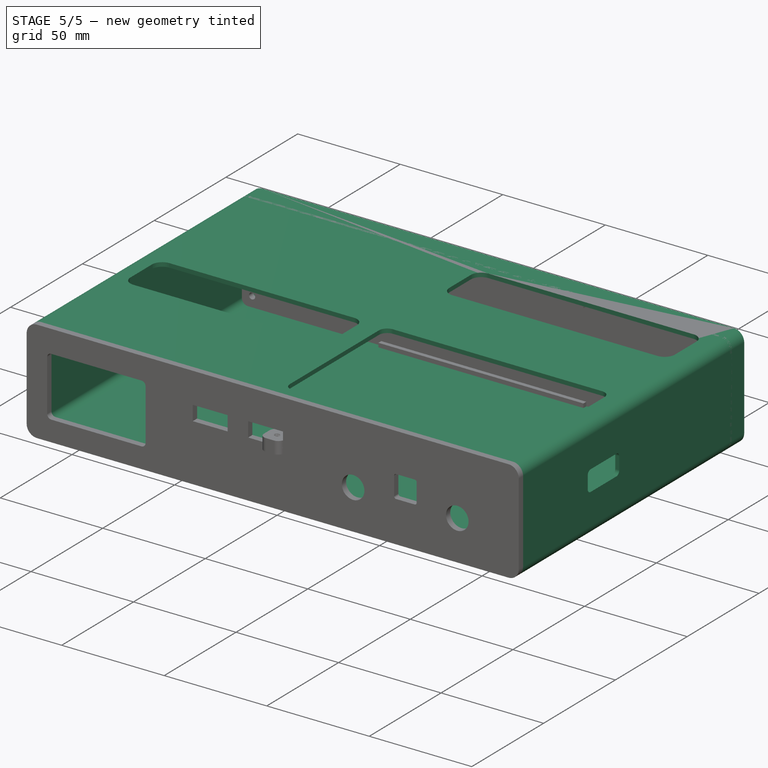
[diagram: stage 5 of 5 — iso view after this stage's code; geometry added in this stage tinted green]
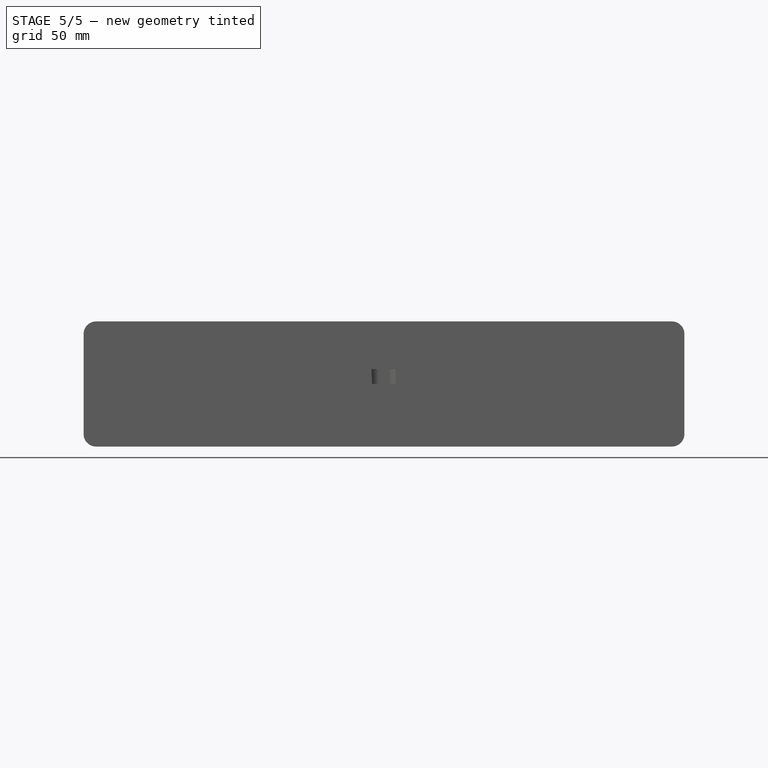
[diagram: stage 5 of 5 — front view after this stage's code; geometry added in this stage tinted green]
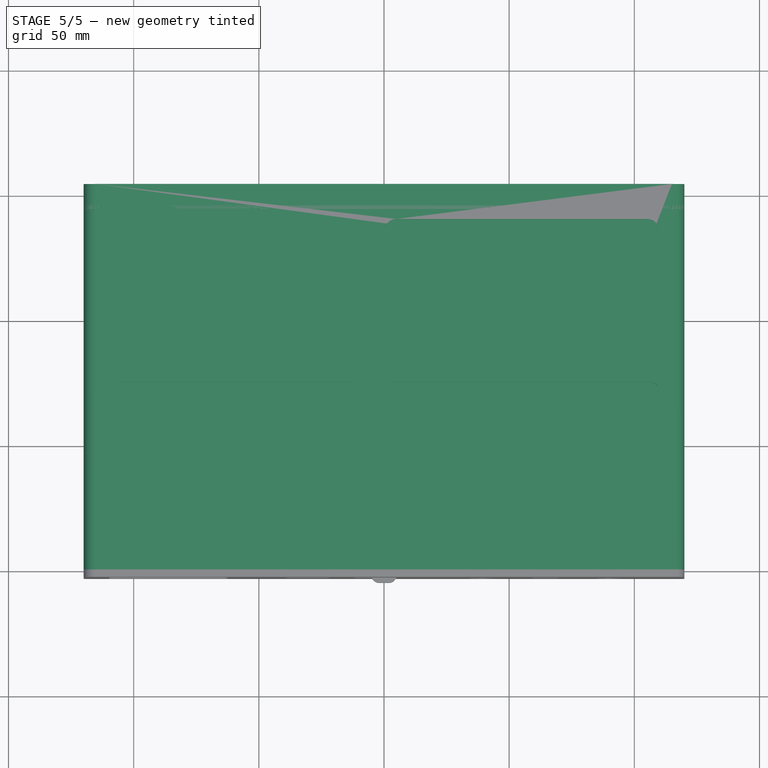
[diagram: stage 5 of 5 — top view after this stage's code; geometry added in this stage tinted green]
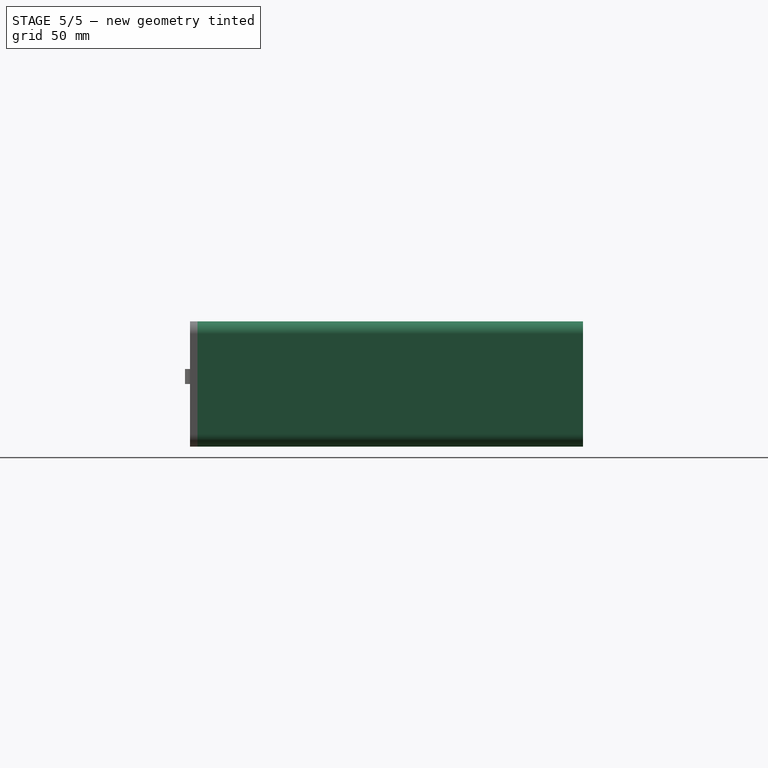
[diagram: stage 5 of 5 — right view after this stage's code; geometry added in this stage tinted green]
FEATURE [App::Point] Origin003
  Role = Origin
FEATURE [Sketcher::SketchObject] Sketch001
  ArcFitTolerance = 1e-06
  AttachmentSupport = -> [Origin002]
  ExternalTypes = [0]
  FullyConstrained = true
  MakeInternals = false
  MapMode = 5
  Placement = pos=(0,0,0) rot=(1,0,0;1.5708rad)
  expr: Constraints[35] = <<dimensions>>.ext_radius - <<dimensions>>.wall_wthickness
  expr: Constraints[36] = 3
  expr: Constraints[39] = <<dimensions>>.ext_height
  expr: Constraints[40] = <<dimensions>>.ext_height
  expr: Constraints[41] = <<dimensions>>.ext_height - <<dimensions>>.wall_wthickness * 2
  sketch-geometry (20):
    g0: LineSegment StartX=-120 StartY=20 StartZ=0 EndX=-120 EndY=-20 EndZ=0
    g1: LineSegment StartX=-115 StartY=-25 StartZ=0 EndX=115 EndY=-25 EndZ=0
    g2: LineSegment StartX=120 StartY=-20 StartZ=0 EndX=120 EndY=20 EndZ=0
    g3: LineSegment StartX=115 StartY=25 StartZ=0 EndX=-115 EndY=25 EndZ=0
    g4: ArcOfCircle CenterX=-115 CenterY=20 CenterZ=0 NormalX=0 NormalY=0 NormalZ=1 AngleXU=0 Radius=5 StartAngle=1.5708 EndAngle=3.14159
    g5: ArcOfCircle CenterX=-115 CenterY=-20 CenterZ=0 NormalX=0 NormalY=0 NormalZ=1 AngleXU=0 Radius=5 StartAngle=3.14159 EndAngle=4.71239
    g6: ArcOfCircle CenterX=115 CenterY=-20 CenterZ=0 NormalX=0 NormalY=0 NormalZ=1 AngleXU=0 Radius=5 StartAngle=4.71239 EndAngle=6.28319
    g7: ArcOfCircle CenterX=115 CenterY=20 CenterZ=0 NormalX=0 NormalY=0 NormalZ=1 AngleXU=0 Radius=5 StartAngle=1.6097e-12 EndAngle=1.5708
    g8: GeomPoint [constr] X=-120 Y=25 Z=0
    g9: GeomPoint [constr] X=120 Y=-25 Z=0
    g10: LineSegment StartX=-118 StartY=20 StartZ=0 EndX=-118 EndY=-20 EndZ=0
    g11: LineSegment StartX=-115 StartY=-23 StartZ=0 EndX=115 EndY=-23 EndZ=0
    g12: LineSegment StartX=118 StartY=-20 StartZ=0 EndX=118 EndY=20 EndZ=0
    g13: LineSegment StartX=115 StartY=23 StartZ=0 EndX=-115 EndY=23 EndZ=0
    g14: ArcOfCircle CenterX=-115 CenterY=20 CenterZ=0 NormalX=0 NormalY=0 NormalZ=1 AngleXU=0 Radius=3 StartAngle=1.5708 EndAngle=3.14159
    g15: ArcOfCircle CenterX=-115 CenterY=-20 CenterZ=0 NormalX=0 NormalY=0 NormalZ=1 AngleXU=0 Radius=3 StartAngle=3.14159 EndAngle=4.71239
    g16: ArcOfCircle CenterX=115 CenterY=-20 CenterZ=0 NormalX=0 NormalY=0 NormalZ=1 AngleXU=0 Radius=3 StartAngle=4.71239 EndAngle=6.28319
    g17: ArcOfCircle CenterX=115 CenterY=20 CenterZ=0 NormalX=0 NormalY=0 NormalZ=1 AngleXU=0 Radius=3 StartAngle=-9e-16 EndAngle=1.5708
    g18: GeomPoint [constr] X=-118 Y=23 Z=0
    g19: GeomPoint [constr] X=118 Y=-23 Z=0
  constraints (44):
    c: Tangent(g0,g4) = -1.5708
    c: Tangent(g0,g5) = -1.5708
    c: Tangent(g1,g5) = -1.5708
    c: Tangent(g1,g6) = -1.5708
    c: Tangent(g2,g6) = -1.5708
    c: Tangent(g2,g7) = -1.5708
    c: Tangent(g3,g7) = -1.5708
    c: Tangent(g3,g4) = -1.5708
    c: Vertical(g0)
    c: Vertical(g2)
    c: Horizontal(g1)
    c: Horizontal(g3)
    c: Equal(g6,g7)
    c: PointOnObject(g8,g0)
    c: PointOnObject(g8,g3)
    c: PointOnObject(g9,g1)
    c: PointOnObject(g9,g2)
    c: Radius(g5) = 5
    c: Symmetric(g0,g2,g-2)
    c: Tangent(g10,g14) = -1.5708
    c: Tangent(g10,g15) = -1.5708
    c: Tangent(g11,g15) = -1.5708
    c: Tangent(g11,g16) = -1.5708
    c: Tangent(g12,g16) = -1.5708
    c: Tangent(g12,g17) = -1.5708
    c: Tangent(g13,g17) = -1.5708
    c: Tangent(g13,g14) = -1.5708
    c: Vertical(g10)
    c: Vertical(g12)
    c: Horizontal(g11)
    c: Horizontal(g13)
    c: Equal(g15,g16)
    c: PointOnObject(g18,g10)
    c: PointOnObject(g18,g13)
    c: PointOnObject(g19,g11)
    c: PointOnObject(g19,g12) = 3
    c: Radius(g15) = 3
    c: Distance(g2,g0) = 240
    c: Symmetric(g13,g11,g-1)
    c: Symmetric(g3,g1,g-1) = 50
    c: Distance(g1,g3) = 50
    c: Distance(g11,g13) = 46
    c: Distance(g10,g12) = 236
    c: Symmetric(g10,g12,g-2)
FEATURE [PartDesign::Pad] Pad001
  Direction = (0,-1,0)
  Length = 154
  Length2 = 10
  Profile = -> Sketch001
  ReferenceAxis = -> Sketch001 [N_Axis]
  Reversed = true
  SideType = 0
  Suppressed = false
  Type = 0
  Type2 = 0
  expr: Length = <<dimensions>>.ext_depth - <<dimensions>>.panel_thickness * 2
FEATURE [Sketcher::SketchObject] Sketch003
  ArcFitTolerance = 1e-06
  AttachmentSupport = -> [Pad001]
  ExternalTypes = [0]
  FullyConstrained = true
  MakeInternals = false
  MapMode = 5
  Placement = pos=(0,5.6e-15,25) rot=(0,0,1;0rad)
  expr: Constraints[22] = <<dimensions>>.ext_width / 2 - 10
  sketch-geometry (30):
    g0: LineSegment StartX=106 StartY=75 StartZ=0 EndX=4 EndY=75 EndZ=0
    g1: LineSegment StartX=0 StartY=71 StartZ=0 EndX=0 EndY=9 EndZ=0
    g2: LineSegment StartX=4 StartY=5 StartZ=0 EndX=106 EndY=5 EndZ=0
    g3: LineSegment StartX=110 StartY=9 StartZ=0 EndX=110 EndY=71 EndZ=0
    g4: ArcOfCircle CenterX=106 CenterY=71 CenterZ=0 NormalX=0 NormalY=0 NormalZ=1 AngleXU=0 Radius=4 StartAngle=4e-16 EndAngle=1.5708
    g5: ArcOfCircle CenterX=4 CenterY=71 CenterZ=0 NormalX=0 NormalY=0 NormalZ=1 AngleXU=0 Radius=4 StartAngle=1.5708 EndAngle=3.14159
    g6: ArcOfCircle CenterX=4 CenterY=9 CenterZ=0 NormalX=0 NormalY=0 NormalZ=1 AngleXU=0 Radius=4 StartAngle=3.14159 EndAngle=4.71239
    g7: ArcOfCircle CenterX=106 CenterY=9 CenterZ=0 NormalX=0 NormalY=0 NormalZ=1 AngleXU=0 Radius=4 StartAngle=4.71239 EndAngle=6.28319
    g8: GeomPoint [constr] X=110 Y=75 Z=0
    g9: GeomPoint [constr] X=0 Y=5 Z=0
    g10: LineSegment StartX=-110 StartY=70 StartZ=0 EndX=-110 EndY=55 EndZ=0
    g11: LineSegment StartX=-105 StartY=50 StartZ=0 EndX=-15 EndY=50 EndZ=0
    g12: LineSegment StartX=-10 StartY=55 StartZ=0 EndX=-10 EndY=70 EndZ=0
    g13: LineSegment StartX=-15 StartY=75 StartZ=0 EndX=-105 EndY=75 EndZ=0
    g14: ArcOfCircle CenterX=-105 CenterY=70 CenterZ=0 NormalX=0 NormalY=0 NormalZ=1 AngleXU=0 Radius=5 StartAngle=1.5708 EndAngle=3.14159
    g15: ArcOfCircle CenterX=-105 CenterY=55 CenterZ=0 NormalX=0 NormalY=0 NormalZ=1 AngleXU=0 Radius=5 StartAngle=3.14159 EndAngle=4.71239
    g16: ArcOfCircle CenterX=-15 CenterY=55 CenterZ=0 NormalX=0 NormalY=0 NormalZ=1 AngleXU=0 Radius=5 StartAngle=4.71239 EndAngle=6.28319
    g17: ArcOfCircle CenterX=-15 CenterY=70 CenterZ=0 NormalX=0 NormalY=0 NormalZ=1 AngleXU=0 Radius=5 StartAngle=0 EndAngle=1.5708
    g18: GeomPoint [constr] X=-110 Y=75 Z=0
    g19: GeomPoint [constr] X=-10 Y=50 Z=0
    g20: LineSegment StartX=0 StartY=135 StartZ=0 EndX=0 EndY=120 EndZ=0
    g21: LineSegment StartX=5 StartY=115 StartZ=0 EndX=105 EndY=115 EndZ=0
    g22: LineSegment StartX=110 StartY=120 StartZ=0 EndX=110 EndY=135 EndZ=0
    g23: LineSegment StartX=105 StartY=140 StartZ=0 EndX=5 EndY=140 EndZ=0
    g24: ArcOfCircle CenterX=5 CenterY=135 CenterZ=0 NormalX=0 NormalY=0 NormalZ=1 AngleXU=0 Radius=5 StartAngle=1.5708 EndAngle=3.14159
    g25: ArcOfCircle CenterX=5 CenterY=120 CenterZ=0 NormalX=0 NormalY=0 NormalZ=1 AngleXU=0 Radius=5 StartAngle=3.14159 EndAngle=4.71239
    g26: ArcOfCircle CenterX=105 CenterY=120 CenterZ=0 NormalX=0 NormalY=0 NormalZ=1 AngleXU=0 Radius=5 StartAngle=4.71239 EndAngle=6.28319
    g27: ArcOfCircle CenterX=105 CenterY=135 CenterZ=0 NormalX=0 NormalY=0 NormalZ=1 AngleXU=0 Radius=5 StartAngle=0 EndAngle=1.5708
    g28: GeomPoint [constr] X=0 Y=140 Z=0
    g29: GeomPoint [constr] X=110 Y=115 Z=0
  constraints (72):
    c: Tangent(g0,g4) = -1.5708
    c: Tangent(g0,g5) = -1.5708
    c: Tangent(g1,g5) = -1.5708
    c: Tangent(g1,g6) = -1.5708
    c: Tangent(g2,g6) = -1.5708
    c: Tangent(g2,g7) = -1.5708
    c: Tangent(g3,g7) = -1.5708
    c: Tangent(g3,g4) = -1.5708
    c: Horizontal(g0)
    c: Horizontal(g2)
    c: Vertical(g1)
    c: Vertical(g3)
    c: Equal(g4,g5)
    c: Equal(g5,g6)
    c: Equal(g6,g7)
    c: PointOnObject(g8,g0)
    c: PointOnObject(g8,g3)
    c: PointOnObject(g9,g1)
    c: PointOnObject(g9,g2)
    c: Radius(g5) = 4
    c: Distance(g-1,g2) = 5
    c: Distance(g2,g0) = 70
    c: Distance(g-1,g3) = 110
    c: PointOnObject(g1,g-2)
    c: Tangent(g10,g14) = -1.5708
    c: Tangent(g10,g15) = -1.5708
    c: Tangent(g11,g15) = -1.5708
    c: Tangent(g11,g16) = -1.5708
    c: Tangent(g12,g16) = -1.5708
    c: Tangent(g12,g17) = -1.5708
    c: Tangent(g13,g17) = -1.5708
    c: Tangent(g13,g14) = -1.5708
    c: Vertical(g10)
    c: Vertical(g12)
    c: Horizontal(g11)
    c: Horizontal(g13)
    c: Equal(g14,g15)
    c: Equal(g15,g16)
    c: Equal(g16,g17)
    c: PointOnObject(g18,g10)
    c: PointOnObject(g18,g13)
    c: PointOnObject(g19,g11)
    c: PointOnObject(g19,g12)
    c: Radius(g15) = 5
    c: Distance(g-1,g11) = 50
    c: Distance(g12,g1) = 10
    c: DistanceX(g10,g12) = 100
    c: Tangent(g20,g24) = -1.5708
    c: Tangent(g20,g25) = -1.5708
    c: Tangent(g21,g25) = -1.5708
    c: Tangent(g21,g26) = -1.5708
    c: Tangent(g22,g26) = -1.5708
    c: Tangent(g22,g27) = -1.5708
    c: Tangent(g23,g27) = -1.5708
    c: Tangent(g23,g24) = -1.5708
    c: Vertical(g20)
    c: Vertical(g22)
    c: Horizontal(g21)
    c: Horizontal(g23)
    c: Equal(g24,g25)
    c: Equal(g25,g26)
    c: Equal(g26,g27)
    c: PointOnObject(g28,g20)
    c: PointOnObject(g28,g23)
    c: PointOnObject(g29,g21)
    c: PointOnObject(g29,g22)
    c: Radius(g25) = 5
    c: DistanceX(g20,g22) = 110
    c: Distance(g21,g23) = 25
    c: Distance(g-1,g23) = 140
    c: PointOnObject(g20,g-2)
    c: Distance(g-1,g13) = 75
FEATURE [PartDesign::Pocket] Pocket
  BaseFeature = -> Pad001
  Direction = (0,0,-1)
  Length = 5
  Length2 = 5
  Profile = -> Sketch003
  ReferenceAxis = -> Sketch003 [N_Axis]
  SideType = 0
  Suppressed = false
  Type = 0
  Type2 = 0
FEATURE [Sketcher::SketchObject] Sketch004
  ArcFitTolerance = 1e-06
  AttachmentSupport = -> [Pocket]
  ExternalTypes = [0]
  FullyConstrained = true
  MakeInternals = false
  MapMode = 5
  Placement = pos=(120,0,0) rot=(0.57735,0.57735,0.57735;2.0944rad)
  sketch-geometry (10):
    g0: LineSegment StartX=45 StartY=3 StartZ=0 EndX=45 EndY=-3 EndZ=0
    g1: LineSegment StartX=47 StartY=-5 StartZ=0 EndX=65 EndY=-5 EndZ=0
    g2: LineSegment StartX=67 StartY=-3 StartZ=0 EndX=67 EndY=3 EndZ=0
    g3: LineSegment StartX=65 StartY=5 StartZ=0 EndX=47 EndY=5 EndZ=0
    g4: ArcOfCircle CenterX=47 CenterY=3 CenterZ=0 NormalX=0 NormalY=0 NormalZ=1 AngleXU=0 Radius=2 StartAngle=1.5708 EndAngle=3.14159
    g5: ArcOfCircle CenterX=47 CenterY=-3 CenterZ=0 NormalX=0 NormalY=0 NormalZ=1 AngleXU=0 Radius=2 StartAngle=3.14159 EndAngle=4.71239
    g6: ArcOfCircle CenterX=65 CenterY=-3 CenterZ=0 NormalX=0 NormalY=0 NormalZ=1 AngleXU=0 Radius=2 StartAngle=4.71239 EndAngle=6.28319
    g7: ArcOfCircle CenterX=65 CenterY=3 CenterZ=0 NormalX=0 NormalY=0 NormalZ=1 AngleXU=0 Radius=2 StartAngle=0 EndAngle=1.5708
    g8: GeomPoint [constr] X=45 Y=5 Z=0
    g9: GeomPoint [constr] X=67 Y=-5 Z=0
  constraints (24):
    c: Tangent(g0,g4) = -1.5708
    c: Tangent(g0,g5) = -1.5708
    c: Tangent(g1,g5) = -1.5708
    c: Tangent(g1,g6) = -1.5708
    c: Tangent(g2,g6) = -1.5708
    c: Tangent(g2,g7) = -1.5708
    c: Tangent(g3,g7) = -1.5708
    c: Tangent(g3,g4) = -1.5708
    c: Vertical(g0)
    c: Vertical(g2)
    c: Horizontal(g1)
    c: Horizontal(g3)
    c: Equal(g4,g5)
    c: Equal(g5,g6)
    c: Equal(g6,g7)
    c: PointOnObject(g8,g0)
    c: PointOnObject(g8,g3)
    c: PointOnObject(g9,g1)
    c: PointOnObject(g9,g2)
    c: Radius(g5) = 2
    c: Distance(g-2,g0) = 45
    c: Distance(g2,g0) = 22
    c: Distance(g1,g3) = 10
    c: Distance(g-1,g3) = 5
FEATURE [PartDesign::Pocket] Pocket001
  BaseFeature = -> Pocket
  Direction = (-1,0,0)
  Length = 5
  Length2 = 5
  Profile = -> Sketch004
  ReferenceAxis = -> Sketch004 [N_Axis]
  SideType = 0
  Suppressed = false
  Type = 0
  Type2 = 0
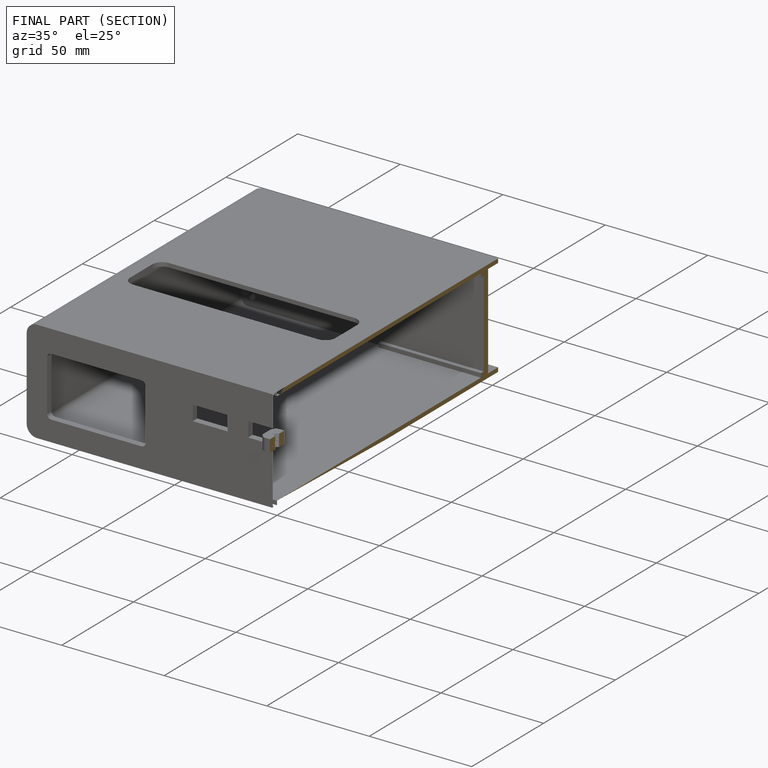
[diagram: finished part — half-section view (interior)]
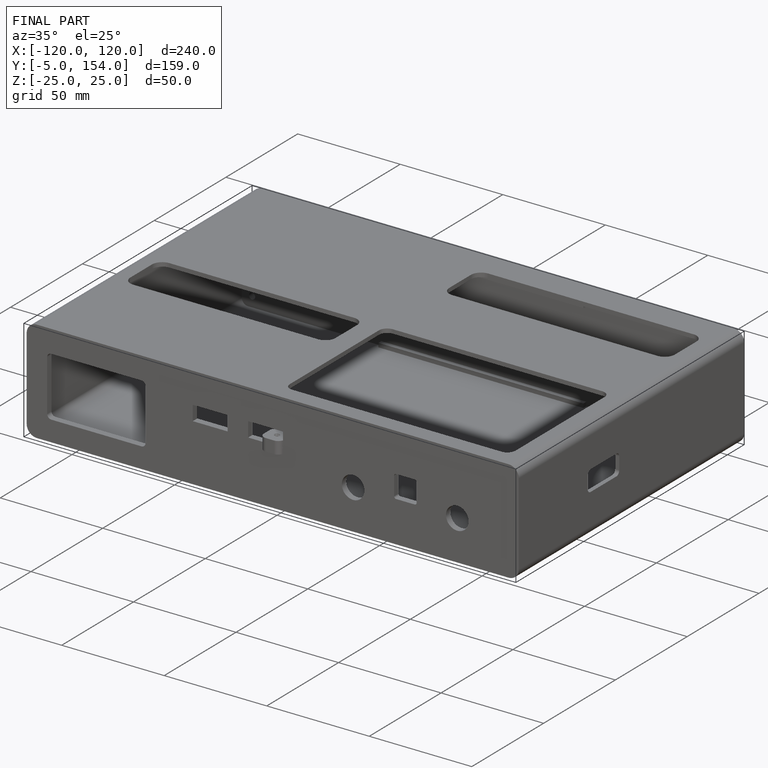
[diagram: finished part — iso view with bounding-box wireframe]
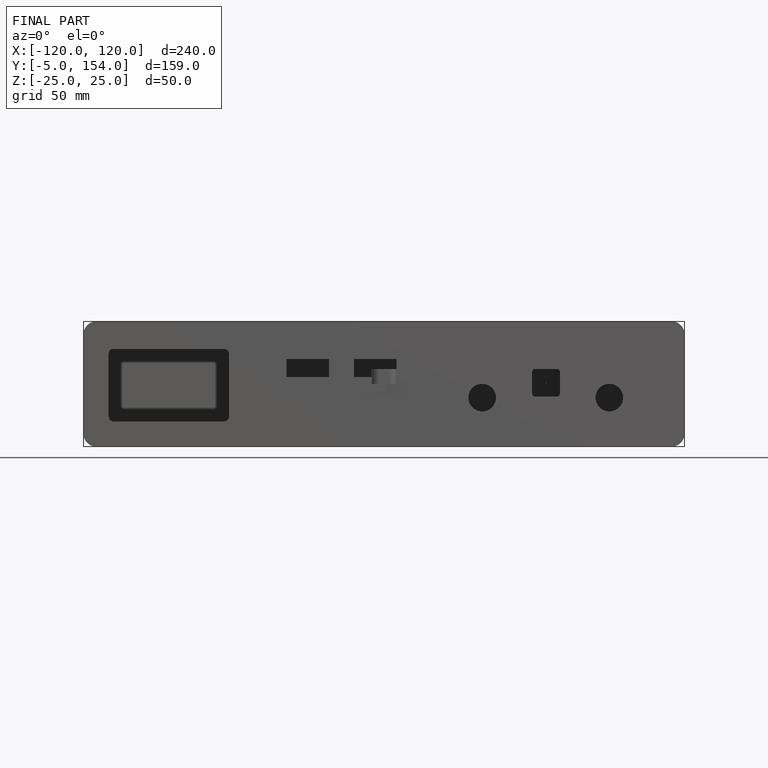
[diagram: finished part — front view with bounding-box wireframe]
